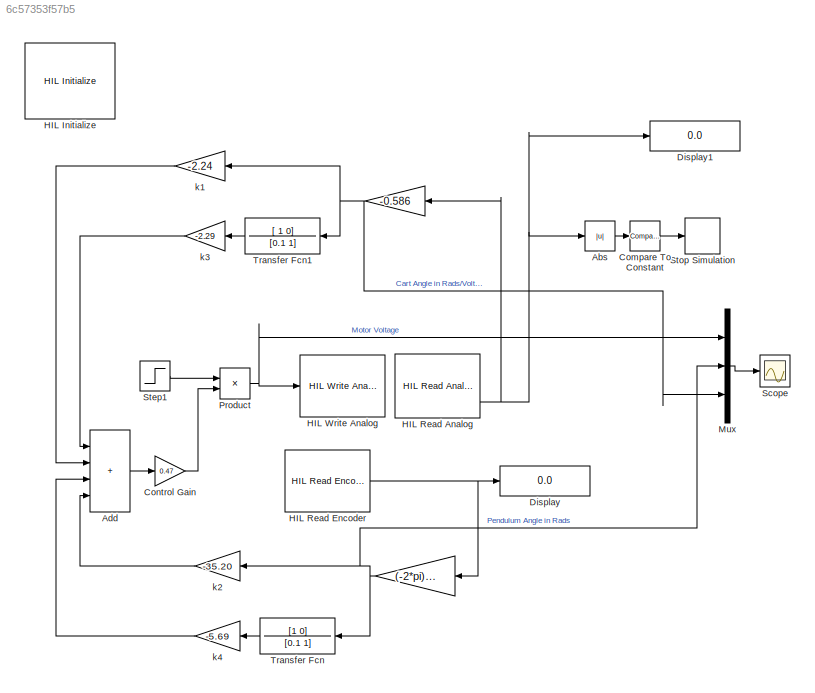
MODEL slx_6c57353f57b5
KIND model
CONFIG AbsTol = auto
CONFIG EnableMultiTasking = on
CONFIG FixedStep = 0.001
CONFIG MaxStep = auto
CONFIG MinStep = auto
CONFIG RelTol = 1e-3
CONFIG SampleTimeConstraint = Unconstrained
CONFIG SolverName = FixedStepAuto
CONFIG StartTime = 0.0
CONFIG StopTime = 30
BLOCK [Gain]  
  Gain = -0.586
  NameLocation = top
BLOCK [Gain]   
  Gain = (-2*pi)/4096
  NameLocation = top
BLOCK [Abs] Abs
  SaturateOnIntegerOverflow = off
BLOCK [Sum] Add
  IconShape = rectangular
  Inputs = ++++
  Ports = [4, 1]
BLOCK [Reference] Compare To Constant  REF=simulink/Logic and Bit
Operations/Compare
To Constant
  Ports = [1, 1]
  SourceBlock = simulink/Logic and Bit\nOperations/Compare\nTo Constant
  SourceProductBaseCode = SL
  SourceType = Compare To Constant
BLOCK [Gain] Control Gain
  Gain = 0.47
BLOCK [Display] Display
  Decimation = 1
  Ports = [1]
BLOCK [Display] Display1
  Decimation = 1
  Ports = [1]
BLOCK [Reference] HIL Initialize  REF=quarc_library/Data Acquisition/Generic/Configuration/HIL Initialize
  AttributesFormatString = %<object_name> (%<board_type>-%<board_number>)
  Ports = []
  SourceBlock = quarc_library/Data Acquisition/Generic/Configuration/HIL Initialize
  SourceProductName = QUARC Targets
  SourceType = HIL Initialize
  UserDataPersistent = on
BLOCK [Reference] HIL Read Analog  REF=quarc_library/Data Acquisition/Generic/Immediate I//O/HIL Read Analog
  AttributesFormatString = (%<object_name>)
  Ports = [0, 3]
  SourceBlock = quarc_library/Data Acquisition/Generic/Immediate I//O/HIL Read Analog
  SourceProductName = QUARC Targets
  SourceType = HIL Read Analog
  UserDataPersistent = on
BLOCK [Reference] HIL Read Encoder  REF=quarc_library/Data Acquisition/Generic/Immediate I//O/HIL Read Encoder
  AttributesFormatString = (%<object_name>)
  Ports = [0, 1]
  SourceBlock = quarc_library/Data Acquisition/Generic/Immediate I//O/HIL Read Encoder
  SourceProductName = QUARC Targets
  SourceType = HIL Read Encoder
  UserDataPersistent = on
BLOCK [Reference] HIL Write Analog  REF=quarc_library/Data Acquisition/Generic/Immediate I//O/HIL Write Analog
  AttributesFormatString = (%<object_name>)
  Ports = [1]
  SourceBlock = quarc_library/Data Acquisition/Generic/Immediate I//O/HIL Write Analog
  SourceProductName = QUARC Targets
  SourceType = HIL Write Analog
  UserDataPersistent = on
BLOCK [Mux] Mux
  DisplayOption = bar
  Inputs = 3
  Ports = [3, 1]
BLOCK [Product] Product
  Ports = [2, 1]
BLOCK [Scope] Scope
  Floating = off
  NumInputPorts = 1
  Ports = [1]
  ScopeSpecificationString = Simulink.scopes.TimeScopeBlockCfg('CurrentConfiguration', extmgr.ConfigurationSet(extmgr.Configuration('Core','General UI',true),extmgr.Configuration('Core','Source UI',true),extmgr.Configuration('Sources','WiredSimulink',true,'DataLogging',true,'DataLoggingSaveFormat','StructureWithTime','SampleTime','0.01'),extmgr.Configuration('Visuals','Time Domain',true,'SerializedDisplays',{struct('MinYLimRe...<+1714ch>
BLOCK [Step] Step1
  After = 0
  Before = 1
  SampleTime = 0
  Time = 29
BLOCK [Stop] Stop Simulation
BLOCK [TransferFcn] Transfer Fcn
  Denominator = [0.1 1]
  NameLocation = top
  Numerator = [1 0]
BLOCK [TransferFcn] Transfer Fcn1
  Denominator = [0.1 1]
  NameLocation = top
  Numerator = [ 1 0]
BLOCK [Gain] k1
  Gain = -2.24
  NameLocation = top
BLOCK [Gain] k2
  Gain = -35.20
  NameLocation = top
BLOCK [Gain] k3
  Gain = -2.29
  NameLocation = top
BLOCK [Gain] k4
  Gain = -5.69
  NameLocation = top
NET   :1 -> Mux:2, Transfer Fcn:1, k2:1
NET  :1 -> Mux:3, Transfer Fcn1:1, k1:1
LINE Abs:1 -> Compare To Constant:1
LINE Add:1 -> Control Gain:1
LINE Compare To Constant:1 -> Stop Simulation:1
LINE Control Gain:1 -> Product:2
NET HIL Read Analog:3 ->  :1, Abs:1, Display1:1
NET HIL Read Encoder:1 ->   :1, Display:1
LINE Mux:1 -> Scope:1
NET Product:1 -> HIL Write Analog:1, Mux:1
LINE Step1:1 -> Product:1
LINE Transfer Fcn1:1 -> k3:1
LINE Transfer Fcn:1 -> k4:1
LINE k1:1 -> Add:2
LINE k2:1 -> Add:4
LINE k3:1 -> Add:1
LINE k4:1 -> Add:3
note: NET lines group one-source signal fan-out (src -> all destinations, sorted); 1:1 wires keep LINE
